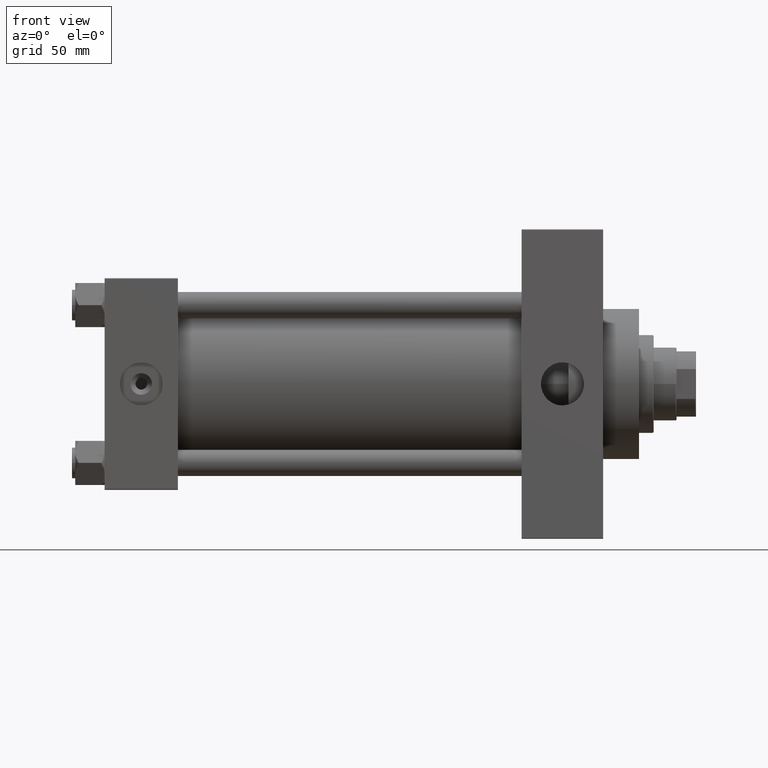
[diagram: clean part render]
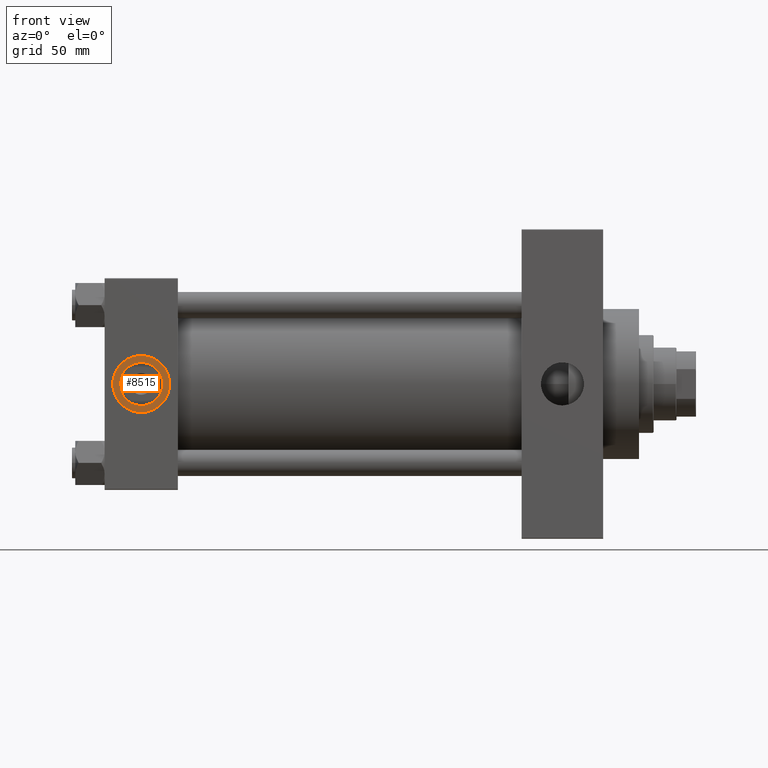
[diagram: same view with one face highlighted and labeled with its STEP entity id]
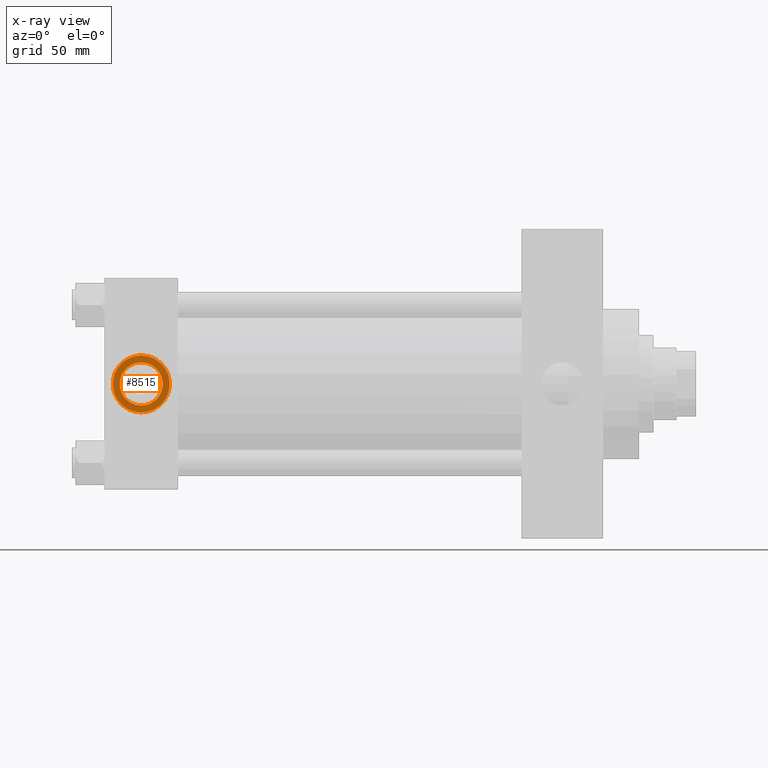
[diagram: x-ray of the same camera — body ghosted, the highlighted face saturated]
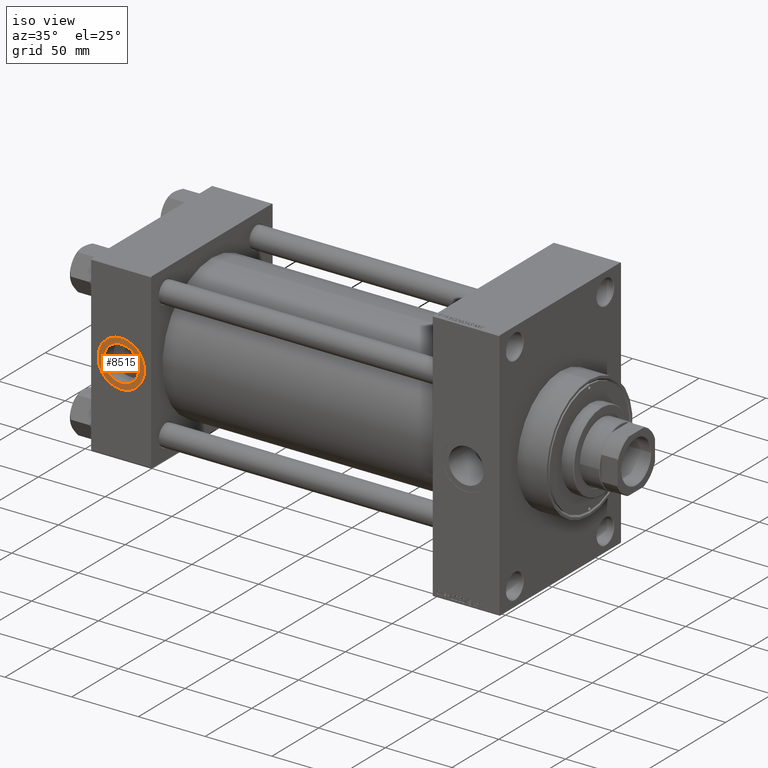
[diagram: same view with one face highlighted and labeled with its STEP entity id]
A machine part, front view. The second image highlights one B-rep face of the part: STEP entity #8515.
The next image is the same camera in x-ray: the body ghosted, the highlighted face saturated — about 0% of this face is hidden behind the body in this view.
A second angle (iso view) of the same face is appended — the face is thin or edge-on in the first view.
In plain terms, the highlighted planar face has unit normal (0, -1, -0).
Its self-contained STEP definition (entity closure, byte-faithful):
#51 = DIRECTION ( 'NONE',  ( 0.000000000000000000, 0.000000000000000000, -1.000000000000000000 ) ) ;
#1723 = AXIS2_PLACEMENT_3D ( 'NONE', #33705, #14998, #25876 ) ;
#1817 = ORIENTED_EDGE ( 'NONE', *, *, #34191, .T. ) ;
#3487 = CARTESIAN_POINT ( 'NONE',  ( 22.50000000000000000, -64.79999999999999716, 1.734723475976770117E-17 ) ) ;
#8515 = ADVANCED_FACE ( 'NONE', ( #29572, #10592 ), #45475, .T. ) ;
#10592 = FACE_OUTER_BOUND ( 'NONE', #44016, .T. ) ;
#12005 = AXIS2_PLACEMENT_3D ( 'NONE', #3487, #18940, #34360 ) ;
#13814 = CIRCLE ( 'NONE', #1723, 13.22000000000000419 ) ;
#14410 = CARTESIAN_POINT ( 'NONE',  ( 22.50000000000000355, -64.79999999999999716, 17.50000000000000000 ) ) ;
#14998 = DIRECTION ( 'NONE',  ( 0.000000000000000000, -1.000000000000000000, -8.673617379884036705E-17 ) ) ;
#15745 = CARTESIAN_POINT ( 'NONE',  ( 22.50000000000000000, -64.79999999999999716, 1.734723475976807403E-17 ) ) ;
#18940 = DIRECTION ( 'NONE',  ( 0.000000000000000000, -1.000000000000000000, -8.673617379884036705E-17 ) ) ;
#19054 = DIRECTION ( 'NONE',  ( 0.000000000000000000, -1.000000000000000000, -8.673617379884036705E-17 ) ) ;
#19384 = VERTEX_POINT ( 'NONE', #43770 ) ;
#20371 = EDGE_CURVE ( 'NONE', #46566, #19384, #13814, .T. ) ;
#20674 = ORIENTED_EDGE ( 'NONE', *, *, #20371, .F. ) ;
#23870 = ORIENTED_EDGE ( 'NONE', *, *, #36123, .F. ) ;
#24053 = AXIS2_PLACEMENT_3D ( 'NONE', #37154, #25776, #49004 ) ;
#24301 = CIRCLE ( 'NONE', #48476, 17.50000000000000000 ) ;
#25333 = VERTEX_POINT ( 'NONE', #14410 ) ;
#25776 = DIRECTION ( 'NONE',  ( 0.000000000000000000, -1.000000000000000000, -8.673617379884036705E-17 ) ) ;
#25876 = DIRECTION ( 'NONE',  ( 0.000000000000000000, 0.000000000000000000, -1.000000000000000000 ) ) ;
#29572 = FACE_BOUND ( 'NONE', #29621, .T. ) ;
#29621 = EDGE_LOOP ( 'NONE', ( #20674, #23870 ) ) ;
#29981 = VERTEX_POINT ( 'NONE', #48379 ) ;
#31173 = DIRECTION ( 'NONE',  ( 0.000000000000000000, -1.000000000000000000, -8.673617379884036705E-17 ) ) ;
#32319 = CARTESIAN_POINT ( 'NONE',  ( 22.50000000000000000, -64.79999999999999716, -13.22000000000000419 ) ) ;
#33705 = CARTESIAN_POINT ( 'NONE',  ( 22.50000000000000000, -64.79999999999999716, 1.734723475976770117E-17 ) ) ;
#34191 = EDGE_CURVE ( 'NONE', #29981, #25333, #35231, .T. ) ;
#34360 = DIRECTION ( 'NONE',  ( 0.000000000000000000, 0.000000000000000000, -1.000000000000000000 ) ) ;
#34711 = CARTESIAN_POINT ( 'NONE',  ( 22.50000000000000000, -64.79999999999999716, 1.734723475976807403E-17 ) ) ;
#35231 = CIRCLE ( 'NONE', #44090, 17.50000000000000000 ) ;
#36123 = EDGE_CURVE ( 'NONE', #19384, #46566, #49122, .T. ) ;
#37154 = CARTESIAN_POINT ( 'NONE',  ( 22.50000000000000000, -64.79999999999999716, 1.734723475976807403E-17 ) ) ;
#40110 = EDGE_CURVE ( 'NONE', #25333, #29981, #24301, .T. ) ;
#43540 = ORIENTED_EDGE ( 'NONE', *, *, #40110, .T. ) ;
#43770 = CARTESIAN_POINT ( 'NONE',  ( 22.50000000000000000, -64.79999999999999716, 13.22000000000000419 ) ) ;
#44016 = EDGE_LOOP ( 'NONE', ( #1817, #43540 ) ) ;
#44090 = AXIS2_PLACEMENT_3D ( 'NONE', #34711, #19054, #51 ) ;
#45475 = PLANE ( 'NONE',  #24053 ) ;
#46560 = DIRECTION ( 'NONE',  ( 0.000000000000000000, 0.000000000000000000, -1.000000000000000000 ) ) ;
#46566 = VERTEX_POINT ( 'NONE', #32319 ) ;
#48379 = CARTESIAN_POINT ( 'NONE',  ( 22.50000000000000000, -64.79999999999999716, -17.50000000000000000 ) ) ;
#48476 = AXIS2_PLACEMENT_3D ( 'NONE', #15745, #31173, #46560 ) ;
#49004 = DIRECTION ( 'NONE',  ( 0.000000000000000000, 8.673617379884036705E-17, -1.000000000000000000 ) ) ;
#49122 = CIRCLE ( 'NONE', #12005, 13.22000000000000419 ) ;